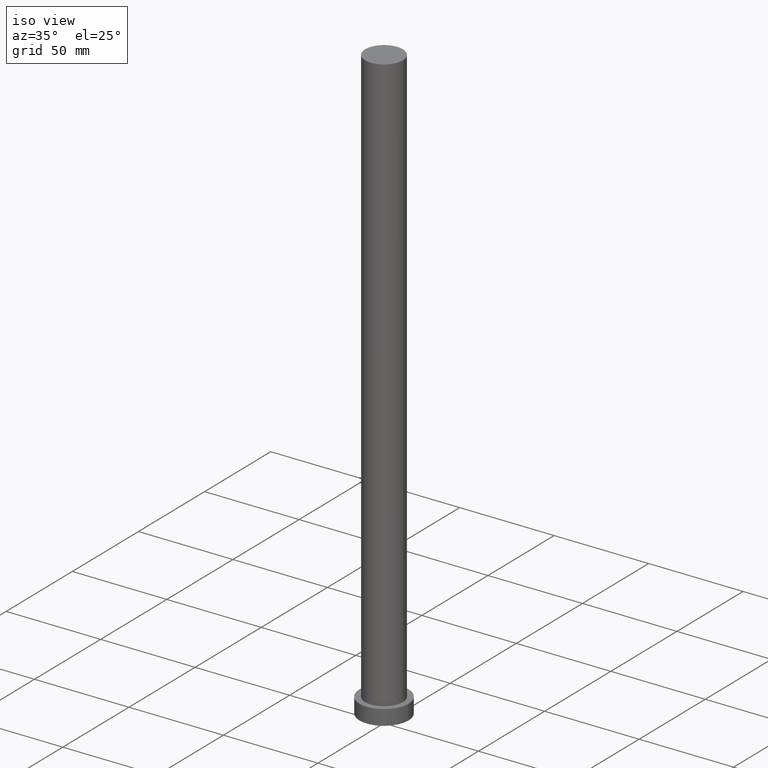
[diagram: clean part render]
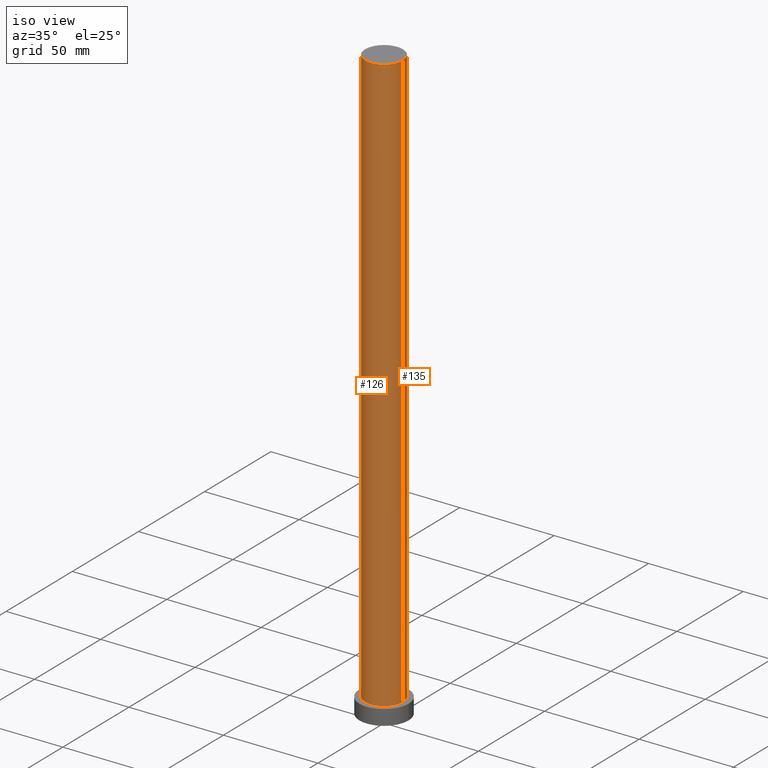
[diagram: same view with one multi-face feature highlighted, each face labeled with its STEP entity id]
A machine part, iso view. The highlighted faces form ONE feature: a constant-radius fillet chain: 2 tangent blend faces with common blend radius 10 mm. The faces share edges in the B-rep.
Their STEP definitions:
[1] entity #126 (Cylinder):
#1 = CARTESIAN_POINT ( 'NONE',  ( -10.00000000000000178, 0.000000000000000000, 315.0000000000000000 ) ) ;
#6 = LINE ( 'NONE', #88, #204 ) ;
#7 = ORIENTED_EDGE ( 'NONE', *, *, #219, .F. ) ;
#11 = EDGE_CURVE ( 'NONE', #110, #94, #122, .T. ) ;
#20 = CARTESIAN_POINT ( 'NONE',  ( -10.00000000000000178, 0.000000000000000000, 8.000000000000000000 ) ) ;
#31 = CARTESIAN_POINT ( 'NONE',  ( -10.00000000000000178, 0.000000000000000000, 315.0000000000000000 ) ) ;
#34 = VERTEX_POINT ( 'NONE', #20 ) ;
#40 = ORIENTED_EDGE ( 'NONE', *, *, #251, .T. ) ;
#42 = DIRECTION ( 'NONE',  ( -0.000000000000000000, -0.000000000000000000, -1.000000000000000000 ) ) ;
#47 = EDGE_LOOP ( 'NONE', ( #7, #86, #40, #89 ) ) ;
#54 = DIRECTION ( 'NONE',  ( -0.000000000000000000, -0.000000000000000000, -1.000000000000000000 ) ) ;
#59 = DIRECTION ( 'NONE',  ( -0.000000000000000000, -0.000000000000000000, -1.000000000000000000 ) ) ;
#61 = CARTESIAN_POINT ( 'NONE',  ( 10.00000000000000178, 1.224646799147353454E-15, 8.000000000000000000 ) ) ;
#64 = DIRECTION ( 'NONE',  ( -1.000000000000000000, 0.000000000000000000, 0.000000000000000000 ) ) ;
#86 = ORIENTED_EDGE ( 'NONE', *, *, #11, .F. ) ;
#88 = CARTESIAN_POINT ( 'NONE',  ( 10.00000000000000178, 1.224646799147353454E-15, 315.0000000000000000 ) ) ;
#89 = ORIENTED_EDGE ( 'NONE', *, *, #196, .T. ) ;
#94 = VERTEX_POINT ( 'NONE', #119 ) ;
#110 = VERTEX_POINT ( 'NONE', #1 ) ;
#111 = CARTESIAN_POINT ( 'NONE',  ( 0.000000000000000000, 0.000000000000000000, 8.000000000000000000 ) ) ;
#119 = CARTESIAN_POINT ( 'NONE',  ( 10.00000000000000178, 1.224646799147353454E-15, 315.0000000000000000 ) ) ;
#120 = CYLINDRICAL_SURFACE ( 'NONE', #211, 10.00000000000000178 ) ;
#122 = CIRCLE ( 'NONE', #253, 10.00000000000000178 ) ;
#126 = ADVANCED_FACE ( 'NONE', ( #160 ), #120, .T. ) ;
#152 = VECTOR ( 'NONE', #54, 1000.000000000000000 ) ;
#160 = FACE_OUTER_BOUND ( 'NONE', #47, .T. ) ;
#162 = DIRECTION ( 'NONE',  ( 0.000000000000000000, 0.000000000000000000, 1.000000000000000000 ) ) ;
#163 = DIRECTION ( 'NONE',  ( 0.000000000000000000, 0.000000000000000000, 1.000000000000000000 ) ) ;
#186 = DIRECTION ( 'NONE',  ( 1.000000000000000000, 0.000000000000000000, 0.000000000000000000 ) ) ;
#190 = AXIS2_PLACEMENT_3D ( 'NONE', #111, #162, #186 ) ;
#196 = EDGE_CURVE ( 'NONE', #34, #235, #227, .T. ) ;
#197 = CARTESIAN_POINT ( 'NONE',  ( 0.000000000000000000, 0.000000000000000000, 315.0000000000000000 ) ) ;
#200 = CARTESIAN_POINT ( 'NONE',  ( 0.000000000000000000, 0.000000000000000000, 315.0000000000000000 ) ) ;
#204 = VECTOR ( 'NONE', #59, 1000.000000000000000 ) ;
#211 = AXIS2_PLACEMENT_3D ( 'NONE', #197, #42, #64 ) ;
#219 = EDGE_CURVE ( 'NONE', #94, #235, #6, .T. ) ;
#223 = LINE ( 'NONE', #31, #152 ) ;
#227 = CIRCLE ( 'NONE', #190, 10.00000000000000178 ) ;
#235 = VERTEX_POINT ( 'NONE', #61 ) ;
#238 = DIRECTION ( 'NONE',  ( 1.000000000000000000, 0.000000000000000000, 0.000000000000000000 ) ) ;
#251 = EDGE_CURVE ( 'NONE', #110, #34, #223, .T. ) ;
#253 = AXIS2_PLACEMENT_3D ( 'NONE', #200, #163, #238 ) ;
[2] entity #135 (Cylinder):
#1 = CARTESIAN_POINT ( 'NONE',  ( -10.00000000000000178, 0.000000000000000000, 315.0000000000000000 ) ) ;
#6 = LINE ( 'NONE', #88, #204 ) ;
#20 = CARTESIAN_POINT ( 'NONE',  ( -10.00000000000000178, 0.000000000000000000, 8.000000000000000000 ) ) ;
#22 = ORIENTED_EDGE ( 'NONE', *, *, #251, .F. ) ;
#25 = CARTESIAN_POINT ( 'NONE',  ( 0.000000000000000000, 0.000000000000000000, 315.0000000000000000 ) ) ;
#31 = CARTESIAN_POINT ( 'NONE',  ( -10.00000000000000178, 0.000000000000000000, 315.0000000000000000 ) ) ;
#34 = VERTEX_POINT ( 'NONE', #20 ) ;
#39 = AXIS2_PLACEMENT_3D ( 'NONE', #215, #105, #109 ) ;
#46 = DIRECTION ( 'NONE',  ( 0.000000000000000000, 0.000000000000000000, 1.000000000000000000 ) ) ;
#54 = DIRECTION ( 'NONE',  ( -0.000000000000000000, -0.000000000000000000, -1.000000000000000000 ) ) ;
#55 = CIRCLE ( 'NONE', #39, 10.00000000000000178 ) ;
#59 = DIRECTION ( 'NONE',  ( -0.000000000000000000, -0.000000000000000000, -1.000000000000000000 ) ) ;
#61 = CARTESIAN_POINT ( 'NONE',  ( 10.00000000000000178, 1.224646799147353454E-15, 8.000000000000000000 ) ) ;
#70 = EDGE_LOOP ( 'NONE', ( #183, #128, #161, #22 ) ) ;
#83 = DIRECTION ( 'NONE',  ( -1.000000000000000000, 0.000000000000000000, 0.000000000000000000 ) ) ;
#88 = CARTESIAN_POINT ( 'NONE',  ( 10.00000000000000178, 1.224646799147353454E-15, 315.0000000000000000 ) ) ;
#94 = VERTEX_POINT ( 'NONE', #119 ) ;
#102 = CIRCLE ( 'NONE', #155, 10.00000000000000178 ) ;
#105 = DIRECTION ( 'NONE',  ( 0.000000000000000000, 0.000000000000000000, 1.000000000000000000 ) ) ;
#109 = DIRECTION ( 'NONE',  ( 1.000000000000000000, 0.000000000000000000, 0.000000000000000000 ) ) ;
#110 = VERTEX_POINT ( 'NONE', #1 ) ;
#119 = CARTESIAN_POINT ( 'NONE',  ( 10.00000000000000178, 1.224646799147353454E-15, 315.0000000000000000 ) ) ;
#128 = ORIENTED_EDGE ( 'NONE', *, *, #219, .T. ) ;
#135 = ADVANCED_FACE ( 'NONE', ( #203 ), #220, .T. ) ;
#141 = CARTESIAN_POINT ( 'NONE',  ( 0.000000000000000000, 0.000000000000000000, 315.0000000000000000 ) ) ;
#144 = DIRECTION ( 'NONE',  ( 1.000000000000000000, 0.000000000000000000, 0.000000000000000000 ) ) ;
#149 = EDGE_CURVE ( 'NONE', #235, #34, #55, .T. ) ;
#152 = VECTOR ( 'NONE', #54, 1000.000000000000000 ) ;
#155 = AXIS2_PLACEMENT_3D ( 'NONE', #25, #46, #144 ) ;
#161 = ORIENTED_EDGE ( 'NONE', *, *, #149, .T. ) ;
#168 = EDGE_CURVE ( 'NONE', #94, #110, #102, .T. ) ;
#183 = ORIENTED_EDGE ( 'NONE', *, *, #168, .F. ) ;
#198 = AXIS2_PLACEMENT_3D ( 'NONE', #141, #201, #83 ) ;
#201 = DIRECTION ( 'NONE',  ( -0.000000000000000000, -0.000000000000000000, -1.000000000000000000 ) ) ;
#203 = FACE_OUTER_BOUND ( 'NONE', #70, .T. ) ;
#204 = VECTOR ( 'NONE', #59, 1000.000000000000000 ) ;
#215 = CARTESIAN_POINT ( 'NONE',  ( 0.000000000000000000, 0.000000000000000000, 8.000000000000000000 ) ) ;
#219 = EDGE_CURVE ( 'NONE', #94, #235, #6, .T. ) ;
#220 = CYLINDRICAL_SURFACE ( 'NONE', #198, 10.00000000000000178 ) ;
#223 = LINE ( 'NONE', #31, #152 ) ;
#235 = VERTEX_POINT ( 'NONE', #61 ) ;
#251 = EDGE_CURVE ( 'NONE', #110, #34, #223, .T. ) ;